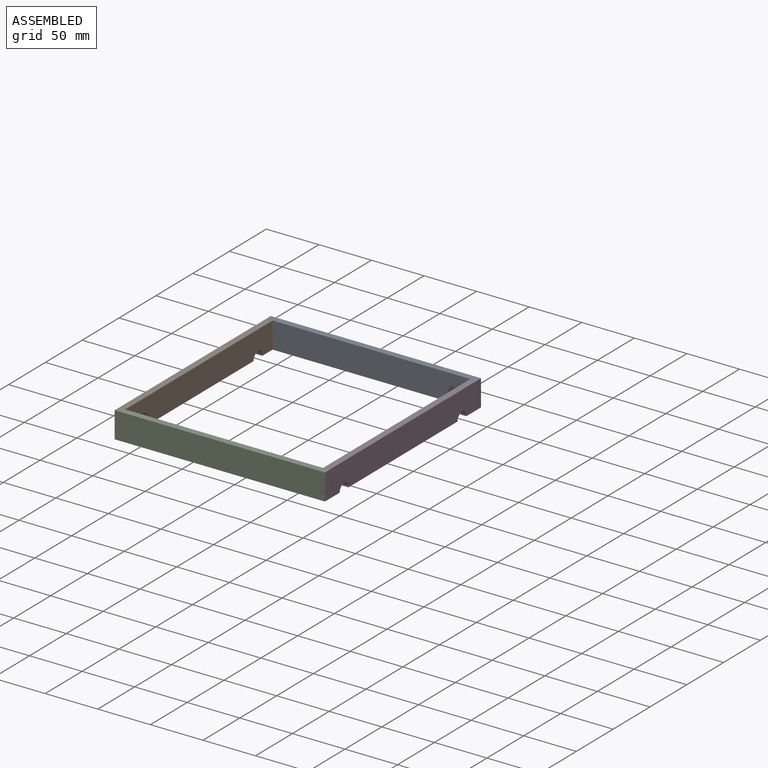
[diagram: assembled view]
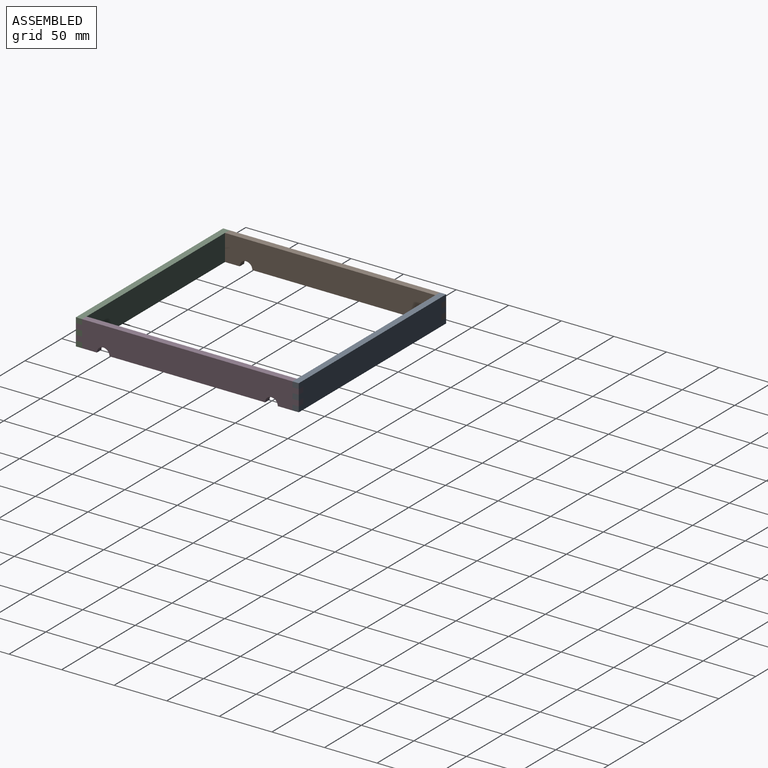
[diagram: assembled view, second angle]
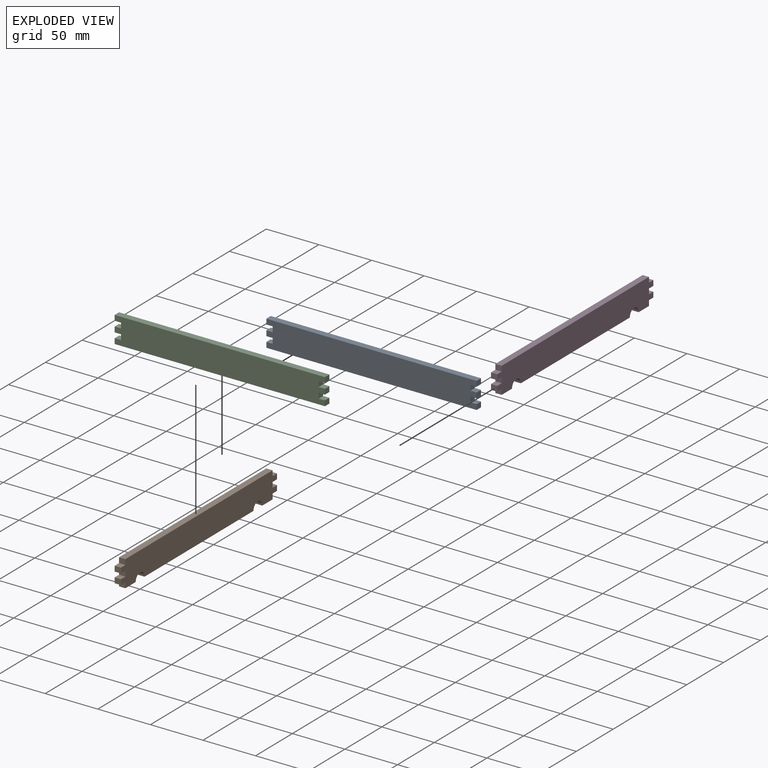
[diagram: exploded view]
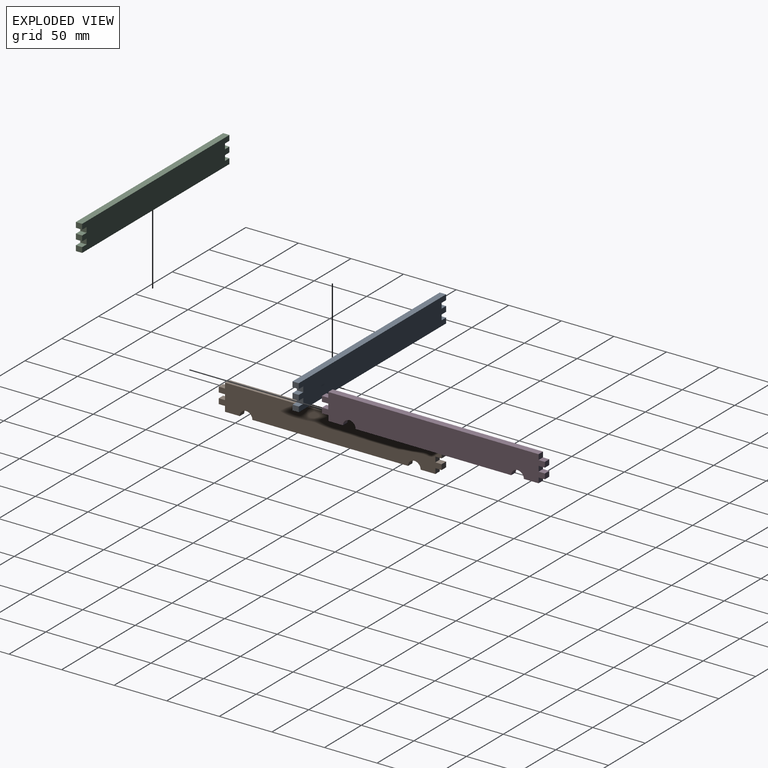
[diagram: exploded view, second angle]
ASSEMBLY  parts=4 mates=3
PART A: 22 faces, bbox 200x6x25 mm
  f0: plane 6x5mm, normal (1,0,0), area 30mm2, adj f1,f19,f20,f21
  f1: plane 6x6mm, normal (0,0,-1), area 36mm2, adj f0,f2,f20,f21
  f2: plane 6x5mm, normal (1,0,0), area 30mm2, adj f1,f3,f20,f21
  f3: plane 200x6mm, normal (0,0,1), area 1200mm2, adj f2,f4,f20,f21
  f4: plane 6x5mm, normal (-1,0,0), area 30mm2, adj f3,f5,f20,f21
  f5: plane 6x6mm, normal (0,0,-1), area 36mm2, adj f4,f6,f20,f21
  f6: plane 6x5mm, normal (-1,0,0), area 30mm2, adj f5,f7,f20,f21
  f7: plane 6x6mm, normal (0,0,1), area 36mm2, adj f6,f8,f20,f21
  f8: plane 6x5mm, normal (-1,0,0), area 30mm2, adj f7,f9,f20,f21
  f9: plane 6x6mm, normal (0,0,-1), area 36mm2, adj f8,f10,f20,f21
  f10: plane 6x5mm, normal (-1,0,0), area 30mm2, adj f9,f11,f20,f21
  f11: plane 6x6mm, normal (0,0,1), area 36mm2, adj f10,f12,f20,f21
  f12: plane 6x5mm, normal (-1,0,0), area 30mm2, adj f11,f13,f20,f21
  f13: plane 200x6mm, normal (0,0,-1), area 1200mm2, adj f12,f14,f20,f21
  f14: plane 6x5mm, normal (1,0,0), area 30mm2, adj f13,f15,f20,f21
  f15: plane 6x6mm, normal (0,0,1), area 36mm2, adj f14,f16,f20,f21
  f16: plane 6x5mm, normal (1,0,0), area 30mm2, adj f15,f17,f20,f21
  f17: plane 6x6mm, normal (0,0,-1), area 36mm2, adj f16,f18,f20,f21
  f18: plane 6x5mm, normal (1,0,0), area 30mm2, adj f17,f19,f20,f21
  f19: plane 6x6mm, normal (0,0,1), area 36mm2, adj f0,f18,f20,f21
  f20: plane 200x25mm, normal (0,-1,0), area 4880mm2, adj f0,f1,f2,f3,f4,f5,f6,f7
  f21: plane 200x25mm, normal (0,1,0), area 4880mm2, adj f0,f1,f2,f3,f4,f5,f6,f7
PART B: 26 faces, bbox 6x212x25 mm
  f0: plane 6x5mm, normal (0,1,0), area 30mm2, adj f1,f23,f24,f25
  f1: plane 6x6mm, normal (0,0,-1), area 36mm2, adj f0,f2,f24,f25
  f2: plane 6x5mm, normal (0,1,0), area 30mm2, adj f1,f3,f24,f25
  f3: plane 6x6mm, normal (0,0,1), area 36mm2, adj f2,f4,f24,f25
  f4: plane 6x5mm, normal (0,1,0), area 30mm2, adj f3,f5,f24,f25
  f5: plane 200x6mm, normal (0,0,1), area 1200mm2, adj f4,f6,f24,f25
  f6: plane 6x5mm, normal (0,-1,0), area 30mm2, adj f5,f7,f24,f25
  f7: plane 6x6mm, normal (0,0,1), area 36mm2, adj f6,f8,f24,f25
  f8: plane 6x5mm, normal (0,-1,0), area 30mm2, adj f7,f9,f24,f25
  f9: plane 6x6mm, normal (0,0,-1), area 36mm2, adj f8,f10,f24,f25
  f10: plane 6x5mm, normal (0,-1,0), area 30mm2, adj f9,f11,f24,f25
  f11: plane 6x6mm, normal (0,0,1), area 36mm2, adj f10,f12,f24,f25
  f12: plane 6x5mm, normal (0,-1,0), area 30mm2, adj f11,f13,f24,f25
  f13: plane 6x6mm, normal (0,0,-1), area 36mm2, adj f12,f14,f24,f25
  f14: plane 6x5mm, normal (0,-1,0), area 30mm2, adj f13,f15,f24,f25
  f15: plane 14x6mm, normal (0,0,-1), area 84mm2, adj f14,f16,f24,f25
  f16: cylinder r=6mm len=12mm, axis (-1,0,0), area 113.1mm2, adj f15,f17,f24,f25
  f17: plane 148x6mm, normal (0,0,-1), area 888mm2, adj f16,f18,f24,f25
  f18: cylinder r=6mm len=12mm, axis (-1,0,0), area 113.1mm2, adj f17,f19,f24,f25
  f19: plane 14x6mm, normal (0,0,-1), area 84mm2, adj f18,f20,f24,f25
  f20: plane 6x5mm, normal (0,1,0), area 30mm2, adj f19,f21,f24,f25
  f21: plane 6x6mm, normal (0,0,-1), area 36mm2, adj f20,f22,f24,f25
  f22: plane 6x5mm, normal (0,1,0), area 30mm2, adj f21,f23,f24,f25
  f23: plane 6x6mm, normal (0,0,1), area 36mm2, adj f0,f22,f24,f25
  f24: plane 212x25mm, normal (1,0,0), area 5006.9mm2, adj f0,f1,f2,f3,f4,f5,f6,f7
  f25: plane 212x25mm, normal (-1,0,0), area 5006.9mm2, adj f0,f1,f2,f3,f4,f5,f6,f7
PART C: same geometry as A
PART D: same geometry as B
PLACE A t=(-10.75,193.02,-14.66)mm
PLACE B t=(-110.75,87.02,-14.66)mm
PLACE C t=(-10.75,-12.98,-14.66)mm
PLACE D t=(83.25,87.02,-14.66)mm
MATE planar D.f7 <-> C.f1  axis (0,0,1) through (86.25,-15.98,-7.16)mm
MATE planar A.f17 <-> D.f23  axis (0,0,-1) through (86.25,190.02,-17.16)mm
MATE planar B.f21 <-> A.f11  axis (0,0,-1) through (-107.75,190.02,-22.16)mm
